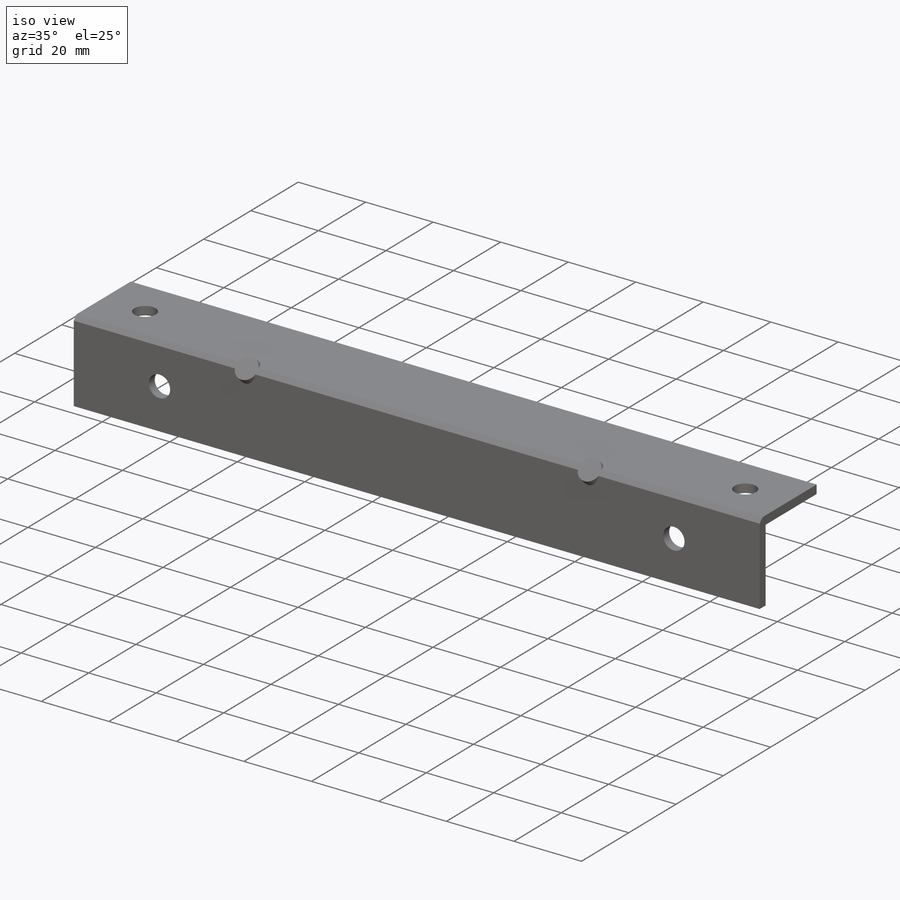
[diagram: iso view]
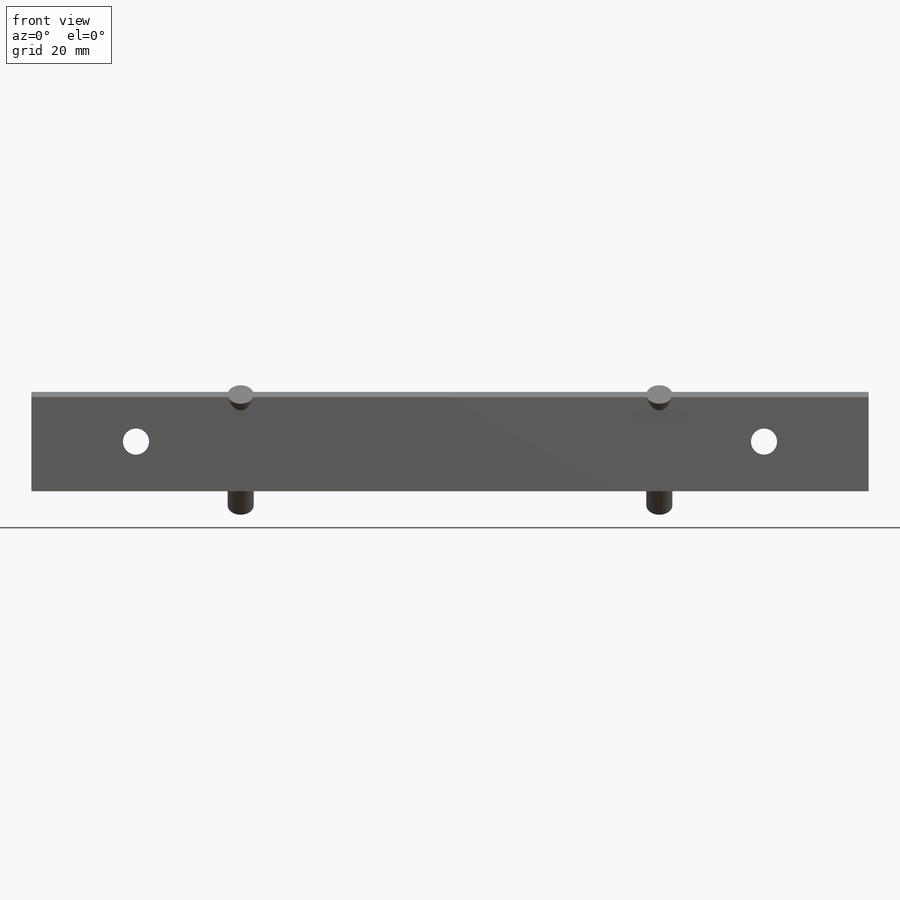
[diagram: front view]
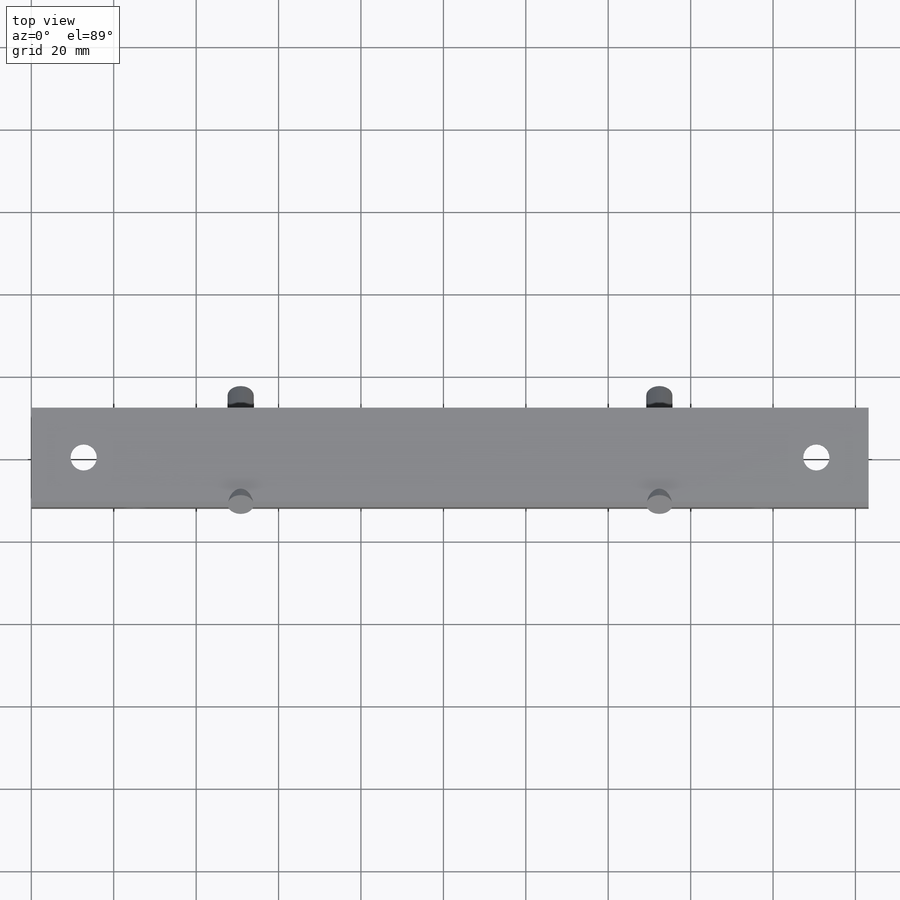
[diagram: top view]
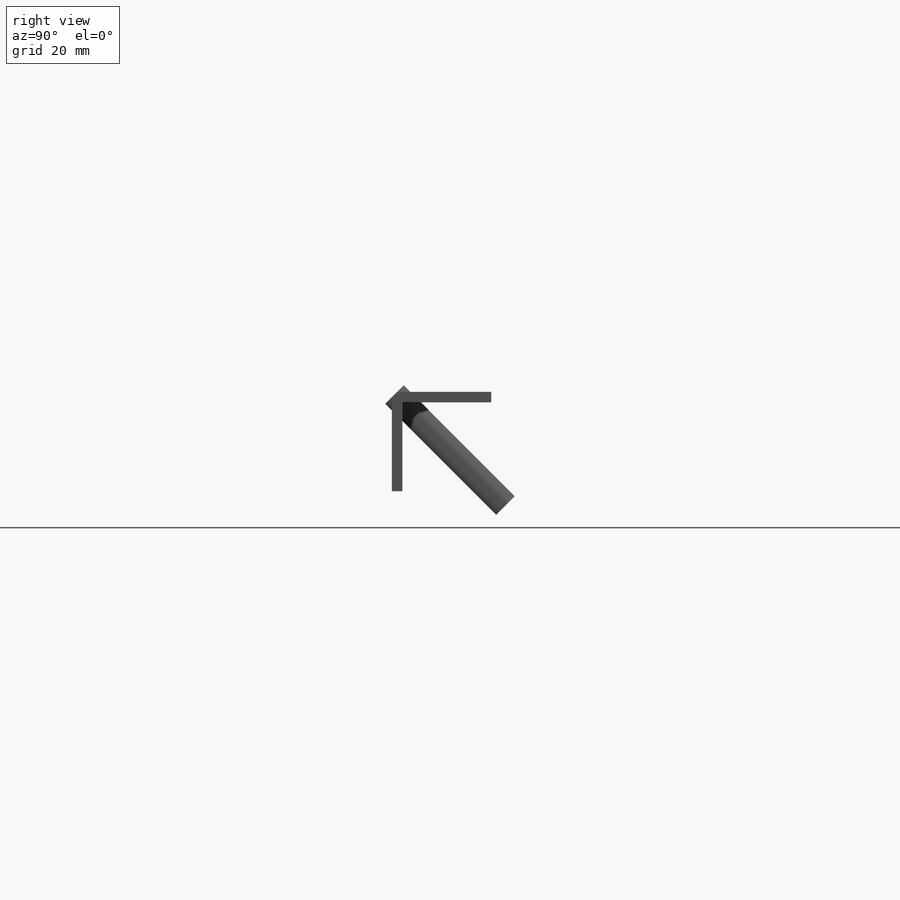
[diagram: right view]
SOLIDWORKS PART (.sldprt)
format: sldprt  version: not decoded by parser v0  size: 198,144 bytes
history: native  units: mm
features: sketch x5, cut_extrude x3, material x1, chamfer x1, extrude x1 (+11 scaffold rows collapsed)
feature tree (22):
  scaffold x11  (default folders/planes/origin — collapsed)
  material  "Material <not specified>"
  sketch  "Sketch1"  dims[c1.D1=19.05mm c1.D2=19.05mm c2.D1=203.2mm c2.D5=2.54mm c2.D6=1.0mm c2.D7=5.0mm]
  sketch  "Sketch2"
  cut_extrude  "Cut-Extrude1"  [1 undecoded]
  sketch  "Sketch3"  dims[D3=6.35mm D4=6.35mm D1=12.7mm D2=12.7mm]
  cut_extrude  "Cut-Extrude2"  [1 undecoded]
  sketch  "Sketch4"  dims[D3=6.35mm D4=6.35mm D1=25.4mm D2=25.4mm]
  cut_extrude  "Cut-Extrude3"  [1 undecoded]
  chamfer  "Chamfer1"  Distance=1.27mm Angle=45deg
  sketch  "Sketch5"  dims[D3=6.35mm D1=50.8mm D2=50.8mm]
  extrude  "Boss-Extrude1"  Depth=38.1mm
decode coverage: 6 of 10 modeling features carry decoded parameters
note: 3 parameter values undecoded
summary: no parameter record found for 3 features
note: suppression state not decoded; provenance and decode notes live in map.json
